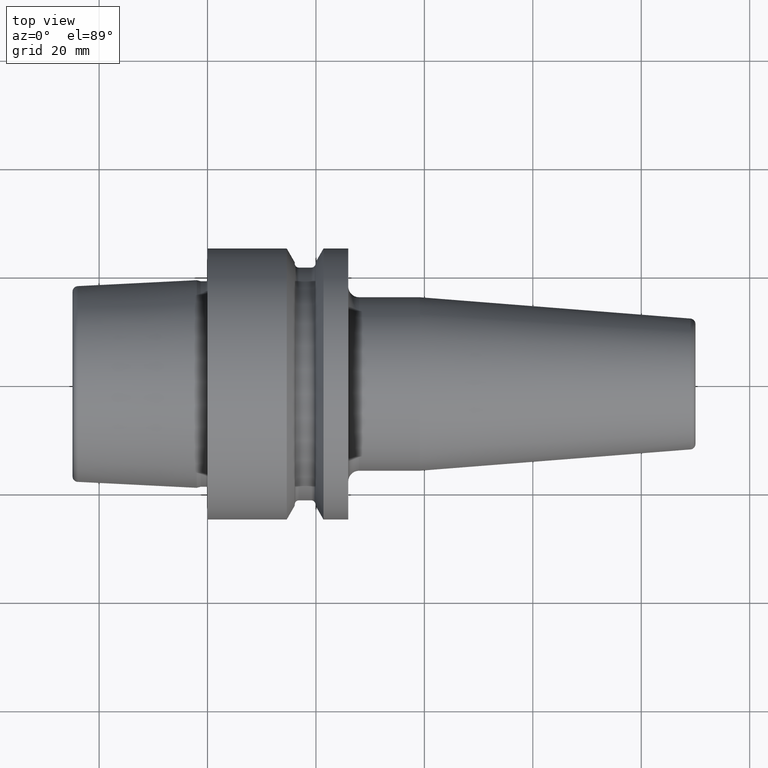
[diagram: clean part render]
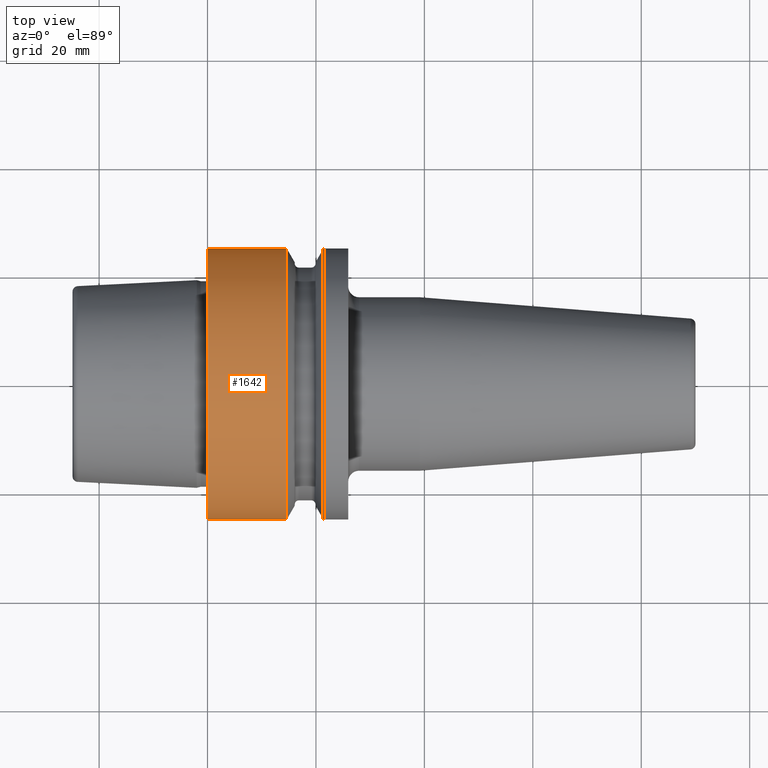
[diagram: same view with one face highlighted and labeled with its STEP entity id]
A machine part, top view. The second image highlights one B-rep face of the part: STEP entity #1642.
In plain terms, the highlighted cylindrical surface (partial cylindrical patch) has radius 25 mm, axis along (1, 0, 0).
Its self-contained STEP definition (entity closure, byte-faithful):
#452=CARTESIAN_POINT('',(0.E0,0.E0,0.E0));
#453=DIRECTION('',(1.E0,0.E0,0.E0));
#454=DIRECTION('',(0.E0,1.E0,0.E0));
#455=AXIS2_PLACEMENT_3D('',#452,#453,#454);
#482=CARTESIAN_POINT('',(1.460806716851E1,0.E0,0.E0));
#483=DIRECTION('',(1.E0,0.E0,0.E0));
#484=DIRECTION('',(0.E0,1.E0,0.E0));
#485=AXIS2_PLACEMENT_3D('',#482,#483,#484);
#614=DIRECTION('',(-1.E0,0.E0,0.E0));
#615=VECTOR('',#614,1.460806716851E1);
#616=CARTESIAN_POINT('',(1.460806716851E1,2.5E1,0.E0));
#617=LINE('',#616,#615);
#618=DIRECTION('',(-1.E0,0.E0,0.E0));
#619=VECTOR('',#618,1.460806716851E1);
#620=CARTESIAN_POINT('',(1.460806716851E1,-2.5E1,0.E0));
#621=LINE('',#620,#619);
#802=CARTESIAN_POINT('',(1.460806716851E1,2.5E1,0.E0));
#803=VERTEX_POINT('',#802);
#806=CARTESIAN_POINT('',(1.460806716851E1,-2.5E1,0.E0));
#807=VERTEX_POINT('',#806);
#812=CARTESIAN_POINT('',(0.E0,2.5E1,0.E0));
#813=CARTESIAN_POINT('',(0.E0,-2.5E1,0.E0));
#814=VERTEX_POINT('',#812);
#815=VERTEX_POINT('',#813);
#1628=CARTESIAN_POINT('',(-2.74425E1,0.E0,0.E0));
#1629=DIRECTION('',(1.E0,0.E0,0.E0));
#1630=DIRECTION('',(0.E0,-1.E0,0.E0));
#1631=AXIS2_PLACEMENT_3D('',#1628,#1629,#1630);
#1632=CYLINDRICAL_SURFACE('',#1631,2.5E1);
#1634=ORIENTED_EDGE('',*,*,#1633,.T.);
#1636=ORIENTED_EDGE('',*,*,#1635,.T.);
#1637=ORIENTED_EDGE('',*,*,#1601,.F.);
#1639=ORIENTED_EDGE('',*,*,#1638,.F.);
#1640=EDGE_LOOP('',(#1634,#1636,#1637,#1639));
#1641=FACE_OUTER_BOUND('',#1640,.F.);
#1642=ADVANCED_FACE('',(#1641),#1632,.T.);
#456=CIRCLE('',#455,2.5E1);
#486=CIRCLE('',#485,2.5E1);
#1601=EDGE_CURVE('',#814,#815,#456,.T.);
#1633=EDGE_CURVE('',#803,#807,#486,.T.);
#1635=EDGE_CURVE('',#807,#815,#621,.T.);
#1638=EDGE_CURVE('',#803,#814,#617,.T.);